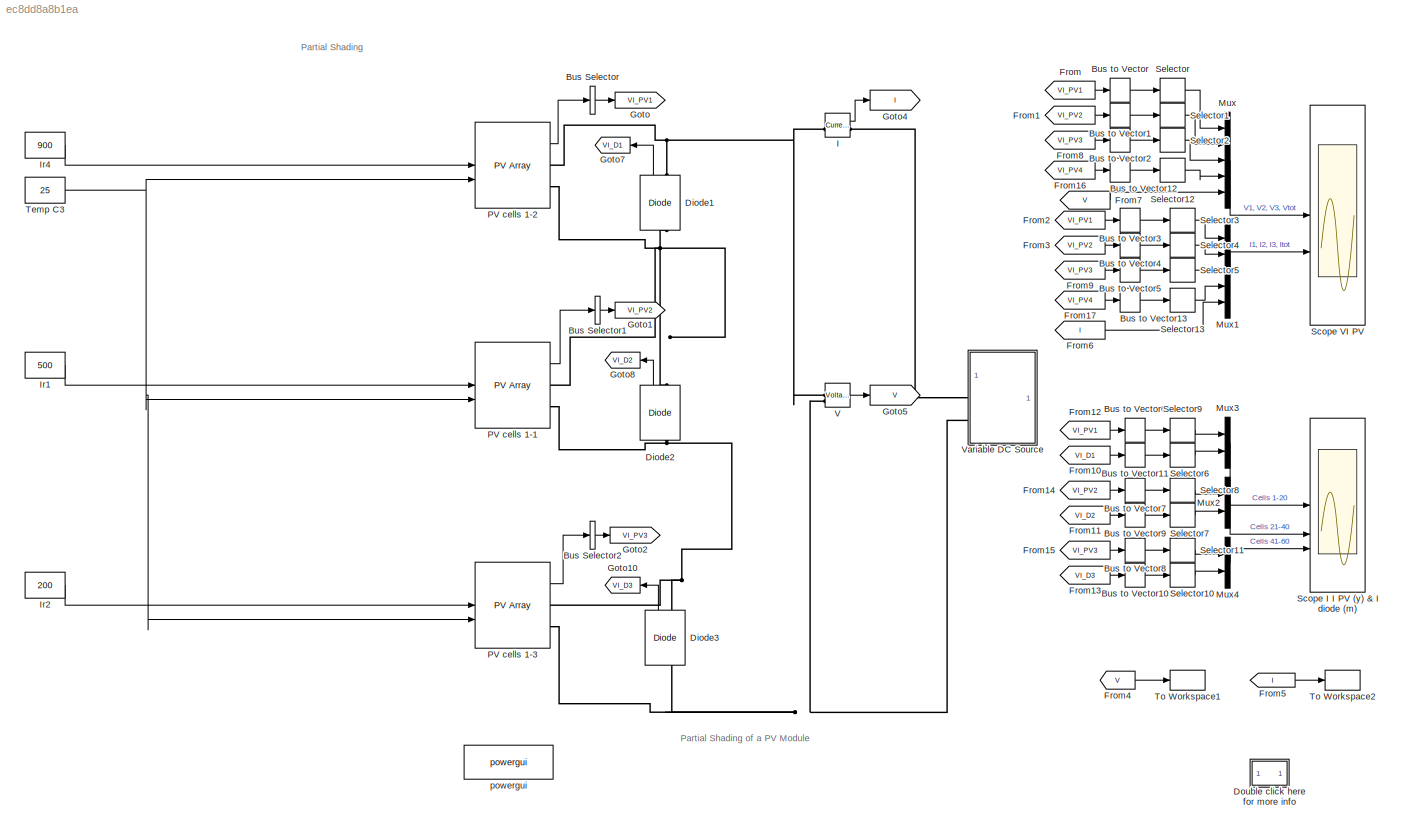
MODEL slx_ec8dd8a8b1ea
KIND model
CONFIG AbsTol = auto
CONFIG EnableMultiTasking = off
CONFIG FixedStep = Ts_Power
CONFIG InitFcn = Ts_Power=50e-6;\nTc=1e-5;%break algebraic loop time constant\nBlockName=[gcs,'/PV cells 1-2'];\nModuleName=get_param(BlockName,'ModuleName');\nVoc1=str2num(get_param(BlockName,'Voc'));\nNser1=str2num(get_param(BlockName,'Nser'));\nSlope_Vdc=Nser1*Voc1;\n
CONFIG MaxStep = auto
CONFIG MinStep = auto
CONFIG PreLoadFcn = Ts_Power=50e-6;\nSlope_Vdc=1;\n\n\n\n\n\n
CONFIG RelTol = 1e-4
CONFIG SampleTimeConstraint = Unconstrained
CONFIG SolverName = ode23tb
CONFIG StartTime = 0.0
CONFIG StopFcn = if exist('I','var') && exist('V','var')\n   figure(1)\n   clf\n   n=find(I>=0);\n   n=n(end);\n   Vglobal=V(1:n);\n   Iglobal=I(1:n);\n\n\n   Pglobal=Vglobal.*Iglobal;\n   n=find(Pglobal==max(Pglobal));\n   Pmax=Pglobal(n);\n   Vmp=Vglobal(n);\n   Imp=Iglobal(n);\n\n\n   %subplot(211)\n   %plot(Vglobal, Iglobal,Vmp,Imp,'or')\n   %grid on\n   %grid minor\n   %ylabel('Current (A)')\n   %title(sprintf('Global I-V & P-V c...<+328ch>
CONFIG StopTime = 5
BLOCK [BusSelector] Bus Selector
  NameLocation = top
  OutputAsBus = on
  OutputSignals = V_PV,I_PV
BLOCK [BusSelector] Bus Selector1
  OutputAsBus = on
  OutputSignals = V_PV,I_PV
BLOCK [BusSelector] Bus Selector2
  OutputAsBus = on
  OutputSignals = V_PV,I_PV
BLOCK [BusToVector] Bus to Vector
BLOCK [BusToVector] Bus to Vector1
BLOCK [BusToVector] Bus to Vector10
BLOCK [BusToVector] Bus to Vector11
BLOCK [BusToVector] Bus to Vector12
BLOCK [BusToVector] Bus to Vector13
BLOCK [BusToVector] Bus to Vector2
BLOCK [BusToVector] Bus to Vector3
BLOCK [BusToVector] Bus to Vector4
BLOCK [BusToVector] Bus to Vector5
BLOCK [BusToVector] Bus to Vector6
BLOCK [BusToVector] Bus to Vector7
BLOCK [BusToVector] Bus to Vector8
BLOCK [BusToVector] Bus to Vector9
BLOCK [Reference] Diode1  REF=spsDiodeLib/Diode
  NameLocation = right
  SourceBlock = spsDiodeLib/Diode
  SourceType = Diode
BLOCK [Reference] Diode2  REF=spsDiodeLib/Diode
  NameLocation = right
  SourceBlock = spsDiodeLib/Diode
  SourceType = Diode
BLOCK [Reference] Diode3  REF=spsDiodeLib/Diode
  NameLocation = right
  SourceBlock = spsDiodeLib/Diode
  SourceType = Diode
BLOCK [SubSystem] Double click here for more info
  OpenFcn = showdemo(bdroot(gcb))
BLOCK [From] From
  GotoTag = VI_PV1
BLOCK [From] From1
  GotoTag = VI_PV2
BLOCK [From] From10
  GotoTag = VI_D1
BLOCK [From] From11
  GotoTag = VI_D2
BLOCK [From] From12
  GotoTag = VI_PV1
BLOCK [From] From13
  GotoTag = VI_D3
BLOCK [From] From14
  GotoTag = VI_PV2
BLOCK [From] From15
  GotoTag = VI_PV3
BLOCK [From] From16
  GotoTag = VI_PV4
BLOCK [From] From17
  GotoTag = VI_PV4
BLOCK [From] From2
  GotoTag = VI_PV1
BLOCK [From] From3
  GotoTag = VI_PV2
BLOCK [From] From4
  GotoTag = V
BLOCK [From] From5
  GotoTag = I
BLOCK [From] From6
  GotoTag = I
BLOCK [From] From7
  GotoTag = V
BLOCK [From] From8
  GotoTag = VI_PV3
BLOCK [From] From9
  GotoTag = VI_PV3
BLOCK [Goto] Goto
  GotoTag = VI_PV1
  NameLocation = top
BLOCK [Goto] Goto1
  GotoTag = VI_PV2
BLOCK [Goto] Goto10
  GotoTag = VI_D3
  NameLocation = top
BLOCK [Goto] Goto2
  GotoTag = VI_PV3
BLOCK [Goto] Goto4
  GotoTag = I
BLOCK [Goto] Goto5
  GotoTag = V
BLOCK [Goto] Goto7
  GotoTag = VI_D1
  NameLocation = top
BLOCK [Goto] Goto8
  GotoTag = VI_D2
  NameLocation = top
BLOCK [Reference] I  REF=spsCurrentMeasurementLib/Current Measurement
  SourceBlock = spsCurrentMeasurementLib/Current Measurement
  SourceType = Current Measurement
  UserDataPersistent = on
BLOCK [Constant] Ir1
  NameLocation = top
  Value = 500
BLOCK [Constant] Ir2
  NameLocation = top
  Value = 200
BLOCK [Constant] Ir4
  NameLocation = top
  Value = 900
BLOCK [Mux] Mux
  DisplayOption = bar
  Inputs = 5
BLOCK [Mux] Mux1
  DisplayOption = bar
  Inputs = 5
BLOCK [Mux] Mux2
  DisplayOption = bar
  Inputs = 2
BLOCK [Mux] Mux3
  DisplayOption = bar
  Inputs = 2
BLOCK [Mux] Mux4
  DisplayOption = bar
  Inputs = 2
BLOCK [Reference] PV cells 1-1  REF=spsPVArrayLib/PV Array
  SourceBlock = spsPVArrayLib/PV Array
  SourceType = PV array
BLOCK [Reference] PV cells 1-2  REF=spsPVArrayLib/PV Array
  SourceBlock = spsPVArrayLib/PV Array
  SourceType = PV array
BLOCK [Reference] PV cells 1-3  REF=spsPVArrayLib/PV Array
  SourceBlock = spsPVArrayLib/PV Array
  SourceType = PV array
BLOCK [Scope] Scope I I PV (y) & I diode (m)
  Floating = off
  NumInputPorts = 3
  ScopeSpecificationString = Simulink.scopes.TimeScopeBlockCfg('CurrentConfiguration', extmgr.ConfigurationSet(extmgr.Configuration('Core','General UI',true),extmgr.Configuration('Core','Source UI',true),extmgr.Configuration('Sources','WiredSimulink',true,'DataLoggingVariableName','VI1','DataLoggingSaveFormat','StructureWithTime','SampleTime','5/1000','DataLoggingDecimation','1'),extmgr.Configuration('Visuals','Time Domain',t...<+3100ch>
BLOCK [Scope] Scope VI PV
  Floating = off
  NumInputPorts = 2
  ScopeSpecificationString = Simulink.scopes.TimeScopeBlockCfg('CurrentConfiguration', extmgr.ConfigurationSet(extmgr.Configuration('Core','General UI',true),extmgr.Configuration('Core','Source UI',true),extmgr.Configuration('Sources','WiredSimulink',true,'DataLogging',true,'DataLoggingVariableName','VI','DataLoggingSaveFormat','StructureWithTime','SampleTime','5/1000','DataLoggingDecimation','1'),extmgr.Configuration('Visual...<+2828ch>
BLOCK [Selector] Selector
  IndexOptions = Index vector (dialog)
  Indices = [1]
  InputPortWidth = 2
  OutputSizes = 1
BLOCK [Selector] Selector1
  IndexOptions = Index vector (dialog)
  Indices = [1]
  InputPortWidth = 2
  OutputSizes = 1
BLOCK [Selector] Selector10
  IndexOptions = Index vector (dialog)
  Indices = [1]
  InputPortWidth = 2
  OutputSizes = 1
BLOCK [Selector] Selector11
  IndexOptions = Index vector (dialog)
  Indices = [2]
  InputPortWidth = 2
  OutputSizes = 1
BLOCK [Selector] Selector12
  IndexOptions = Index vector (dialog)
  Indices = [1]
  InputPortWidth = 2
  OutputSizes = 1
BLOCK [Selector] Selector13
  IndexOptions = Index vector (dialog)
  Indices = [2]
  InputPortWidth = 2
  OutputSizes = 1
BLOCK [Selector] Selector2
  IndexOptions = Index vector (dialog)
  Indices = [1]
  InputPortWidth = 2
  OutputSizes = 1
BLOCK [Selector] Selector3
  IndexOptions = Index vector (dialog)
  Indices = [2]
  InputPortWidth = 2
  OutputSizes = 1
BLOCK [Selector] Selector4
  IndexOptions = Index vector (dialog)
  Indices = [2]
  InputPortWidth = 2
  OutputSizes = 1
BLOCK [Selector] Selector5
  IndexOptions = Index vector (dialog)
  Indices = [2]
  InputPortWidth = 2
  OutputSizes = 1
BLOCK [Selector] Selector6
  IndexOptions = Index vector (dialog)
  Indices = [1]
  InputPortWidth = 2
  OutputSizes = 1
BLOCK [Selector] Selector7
  IndexOptions = Index vector (dialog)
  Indices = [1]
  InputPortWidth = 2
  OutputSizes = 1
BLOCK [Selector] Selector8
  IndexOptions = Index vector (dialog)
  Indices = [2]
  InputPortWidth = 2
  OutputSizes = 1
BLOCK [Selector] Selector9
  IndexOptions = Index vector (dialog)
  Indices = [2]
  InputPortWidth = 2
  OutputSizes = 1
BLOCK [Constant] Temp C3
  Value = 25
BLOCK [ToWorkspace] To Workspace1
  FixptAsFi = on
  MaxDataPoints = inf
  SampleTime = 1e-3
  VariableName = V
BLOCK [ToWorkspace] To Workspace2
  FixptAsFi = on
  MaxDataPoints = inf
  SampleTime = 1e-3
  VariableName = I
BLOCK [Reference] V  REF=spsVoltageMeasurementLib/Voltage Measurement
  SourceBlock = spsVoltageMeasurementLib/Voltage Measurement
  SourceType = Voltage Measurement
  UserDataPersistent = on
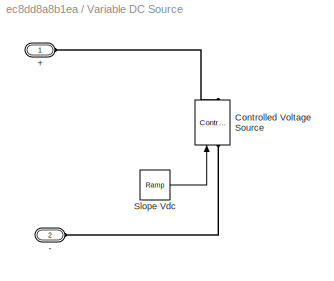
BLOCK [SubSystem] Variable DC Source
BLOCK [PMIOPort] Variable DC Source/+
  Side = Left
BLOCK [PMIOPort] Variable DC Source/-
  Port = 2
  Side = Left
BLOCK [Reference] Variable DC Source/Controlled Voltage Source  REF=spsControlledVoltageSourceLib/Controlled Voltage Source
  NameLocation = right
  SourceBlock = spsControlledVoltageSourceLib/Controlled Voltage Source
  SourceType = Controlled Voltage Source
BLOCK [Reference] Variable DC Source/Slope Vdc  REF=simulink/Sources/Ramp
  NameLocation = top
  SourceBlock = simulink/Sources/Ramp
  SourceType = Ramp
BLOCK [Reference] powergui  REF=spspowerguiLib/powergui
  Priority = 1
  SourceBlock = spspowerguiLib/powergui
  SourceType = PSB option menu block
ANNOTATION (root): Partial Shading
ANNOTATION (root): Partial Shading of a PV Module
LINE Bus Selector1:1 -> Goto1:1
LINE Bus Selector2:1 -> Goto2:1
LINE Bus Selector:1 -> Goto:1
LINE Bus to Vector10:1 -> Selector10:1
LINE Bus to Vector11:1 -> Selector6:1
LINE Bus to Vector12:1 -> Selector12:1
LINE Bus to Vector13:1 -> Selector13:1
LINE Bus to Vector1:1 -> Selector1:1
LINE Bus to Vector2:1 -> Selector2:1
LINE Bus to Vector3:1 -> Selector3:1
LINE Bus to Vector4:1 -> Selector4:1
LINE Bus to Vector5:1 -> Selector5:1
LINE Bus to Vector6:1 -> Selector9:1
LINE Bus to Vector7:1 -> Selector8:1
LINE Bus to Vector8:1 -> Selector11:1
LINE Bus to Vector9:1 -> Selector7:1
LINE Bus to Vector:1 -> Selector:1
LINE Diode1:1 -> Goto7:1
LINE Diode2:1 -> Goto8:1
LINE Diode3:1 -> Goto10:1
LINE From10:1 -> Bus to Vector11:1
LINE From11:1 -> Bus to Vector9:1
LINE From12:1 -> Bus to Vector6:1
LINE From13:1 -> Bus to Vector10:1
LINE From14:1 -> Bus to Vector7:1
LINE From15:1 -> Bus to Vector8:1
LINE From16:1 -> Bus to Vector12:1
LINE From17:1 -> Bus to Vector13:1
LINE From1:1 -> Bus to Vector1:1
LINE From2:1 -> Bus to Vector3:1
LINE From3:1 -> Bus to Vector4:1
LINE From4:1 -> To Workspace1:1
LINE From5:1 -> To Workspace2:1
LINE From6:1 -> Mux1:5
LINE From7:1 -> Mux:5
LINE From8:1 -> Bus to Vector2:1
LINE From9:1 -> Bus to Vector5:1
LINE From:1 -> Bus to Vector:1
LINE I:1 -> Goto4:1
LINE Ir1:1 -> PV cells 1-1:1
LINE Ir2:1 -> PV cells 1-3:1
LINE Ir4:1 -> PV cells 1-2:1
LINE Mux1:1 -> Scope VI PV:2
LINE Mux2:1 -> Scope I I PV (y) & I diode (m):2
LINE Mux3:1 -> Scope I I PV (y) & I diode (m):1
LINE Mux4:1 -> Scope I I PV (y) & I diode (m):3
LINE Mux:1 -> Scope VI PV:1
LINE PV cells 1-1:1 -> Bus Selector1:1
LINE PV cells 1-2:1 -> Bus Selector:1
LINE PV cells 1-3:1 -> Bus Selector2:1
LINE Selector10:1 -> Mux4:2
LINE Selector11:1 -> Mux4:1
LINE Selector12:1 -> Mux:4
LINE Selector13:1 -> Mux1:4
LINE Selector1:1 -> Mux:2
LINE Selector2:1 -> Mux:3
LINE Selector3:1 -> Mux1:1
LINE Selector4:1 -> Mux1:2
LINE Selector5:1 -> Mux1:3
LINE Selector6:1 -> Mux3:2
LINE Selector7:1 -> Mux2:2
LINE Selector8:1 -> Mux2:1
LINE Selector9:1 -> Mux3:1
LINE Selector:1 -> Mux:1
NET Temp C3:1 -> PV cells 1-1:2, PV cells 1-2:2, PV cells 1-3:2
LINE V:1 -> Goto5:1
LINE Variable DC Source/Slope Vdc:1 -> Variable DC Source/Controlled Voltage Source:1
PNET net1: Diode1:LConn1 -- Diode2:RConn1 -- PV cells 1-1:RConn1 -- PV cells 1-2:RConn2
PNET net2: Diode1:RConn1 -- I:LConn1 -- PV cells 1-2:RConn1 -- V:LConn1
PNET net3: Diode2:LConn1 -- Diode3:RConn1 -- PV cells 1-1:RConn2 -- PV cells 1-3:RConn1
PNET net4: Diode3:LConn1 -- PV cells 1-3:RConn2 -- V:LConn2 -- Variable DC Source:LConn2
PLINE I:RConn1 -- Variable DC Source:LConn1
PLINE Variable DC Source/+:RConn1 -- Variable DC Source/Controlled Voltage Source:RConn1
PLINE Variable DC Source/-:RConn1 -- Variable DC Source/Controlled Voltage Source:LConn1
note: NET lines group one-source signal fan-out (src -> all destinations, sorted); 1:1 wires keep LINE; PNET lines group multi-terminal physical nets as a canonical sorted terminal list (undirected conserving connections); 2-terminal nets keep the pairwise PLINE form
